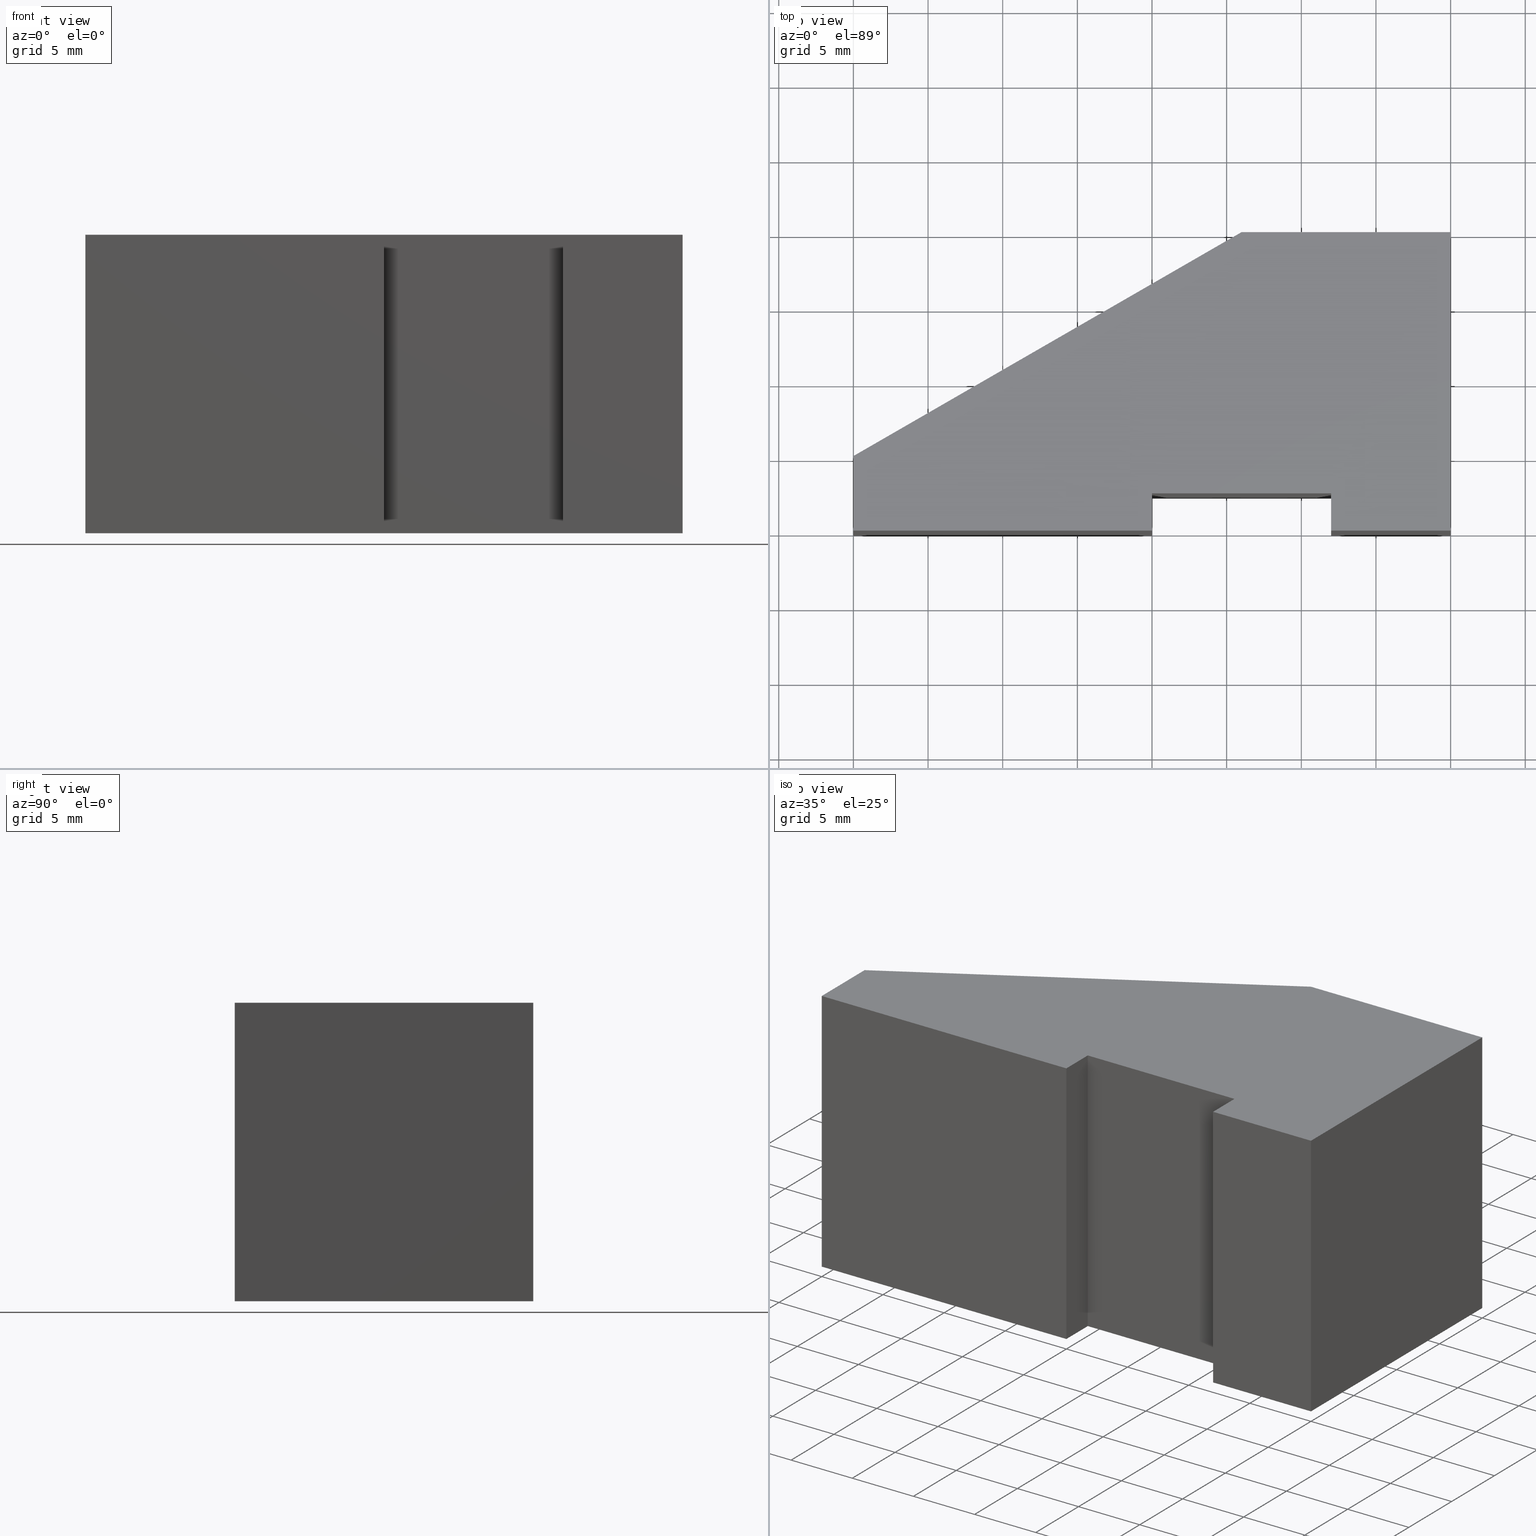
[diagram: canonical four-view strip — front | top / right | iso, engineering-drawing reading convention]
A machine part, canonical four-view strip (front | top / right | iso — engineering-drawing reading convention). The complete STEP part file that produces these views, byte-faithful:
ISO-10303-21;
HEADER;
/* Generated by software containing ST-Developer
 * from STEP Tools, Inc. (www.steptools.com) 
 */

FILE_DESCRIPTION(
/* description */ (''),
/* implementation_level */ '2;1');

FILE_NAME(
/* name */ 'E_3_01_06_06_00_WKZ-0172.stp',
/* time_stamp */ '2025-11-24T12:51:57+01:00',
/* author */ ('d.fischer'),
/* organization */ (''),
/* preprocessor_version */ 'ST-DEVELOPER v20',
/* originating_system */ 'Autodesk Inventor 2025',
/* authorisation */ '');

FILE_SCHEMA (('AUTOMOTIVE_DESIGN { 1 0 10303 214 3 1 1 }'));
ENDSEC;

DATA;
#10=MECHANICAL_DESIGN_GEOMETRIC_PRESENTATION_REPRESENTATION('',(#13),#357);
#11=SHAPE_REPRESENTATION_RELATIONSHIP('SRR','None',#364,#12);
#12=ADVANCED_BREP_SHAPE_REPRESENTATION('',(#14),#356);
#13=STYLED_ITEM('',(#373),#14);
#14=MANIFOLD_SOLID_BREP('Volumenk\X\F6rper1',#212);
#15=FACE_OUTER_BOUND('',#26,.T.);
#16=FACE_OUTER_BOUND('',#27,.T.);
#17=FACE_OUTER_BOUND('',#28,.T.);
#18=FACE_OUTER_BOUND('',#29,.T.);
#19=FACE_OUTER_BOUND('',#30,.T.);
#20=FACE_OUTER_BOUND('',#31,.T.);
#21=FACE_OUTER_BOUND('',#32,.T.);
#22=FACE_OUTER_BOUND('',#33,.T.);
#23=FACE_OUTER_BOUND('',#34,.T.);
#24=FACE_OUTER_BOUND('',#35,.T.);
#25=FACE_OUTER_BOUND('',#36,.T.);
#26=EDGE_LOOP('',(#136,#137,#138,#139,#140,#141,#142,#143,#144));
#27=EDGE_LOOP('',(#145,#146,#147,#148));
#28=EDGE_LOOP('',(#149,#150,#151,#152));
#29=EDGE_LOOP('',(#153,#154,#155,#156));
#30=EDGE_LOOP('',(#157,#158,#159,#160));
#31=EDGE_LOOP('',(#161,#162,#163,#164));
#32=EDGE_LOOP('',(#165,#166,#167,#168));
#33=EDGE_LOOP('',(#169,#170,#171,#172));
#34=EDGE_LOOP('',(#173,#174,#175,#176));
#35=EDGE_LOOP('',(#177,#178,#179,#180));
#36=EDGE_LOOP('',(#181,#182,#183,#184,#185,#186,#187,#188,#189));
#37=LINE('',#301,#64);
#38=LINE('',#303,#65);
#39=LINE('',#305,#66);
#40=LINE('',#307,#67);
#41=LINE('',#309,#68);
#42=LINE('',#311,#69);
#43=LINE('',#313,#70);
#44=LINE('',#315,#71);
#45=LINE('',#316,#72);
#46=LINE('',#320,#73);
#47=LINE('',#321,#74);
#48=LINE('',#322,#75);
#49=LINE('',#325,#76);
#50=LINE('',#326,#77);
#51=LINE('',#329,#78);
#52=LINE('',#330,#79);
#53=LINE('',#333,#80);
#54=LINE('',#334,#81);
#55=LINE('',#337,#82);
#56=LINE('',#338,#83);
#57=LINE('',#341,#84);
#58=LINE('',#342,#85);
#59=LINE('',#345,#86);
#60=LINE('',#346,#87);
#61=LINE('',#349,#88);
#62=LINE('',#350,#89);
#63=LINE('',#352,#90);
#64=VECTOR('',#250,10.);
#65=VECTOR('',#251,10.);
#66=VECTOR('',#252,10.);
#67=VECTOR('',#253,10.);
#68=VECTOR('',#254,10.);
#69=VECTOR('',#255,10.);
#70=VECTOR('',#256,10.);
#71=VECTOR('',#257,10.);
#72=VECTOR('',#258,10.);
#73=VECTOR('',#261,10.);
#74=VECTOR('',#262,10.);
#75=VECTOR('',#263,10.);
#76=VECTOR('',#266,10.);
#77=VECTOR('',#267,10.);
#78=VECTOR('',#270,10.);
#79=VECTOR('',#271,10.);
#80=VECTOR('',#274,10.);
#81=VECTOR('',#275,10.);
#82=VECTOR('',#278,10.);
#83=VECTOR('',#279,10.);
#84=VECTOR('',#282,10.);
#85=VECTOR('',#283,10.);
#86=VECTOR('',#286,10.);
#87=VECTOR('',#287,10.);
#88=VECTOR('',#290,10.);
#89=VECTOR('',#291,10.);
#90=VECTOR('',#294,10.);
#91=VERTEX_POINT('',#299);
#92=VERTEX_POINT('',#300);
#93=VERTEX_POINT('',#302);
#94=VERTEX_POINT('',#304);
#95=VERTEX_POINT('',#306);
#96=VERTEX_POINT('',#308);
#97=VERTEX_POINT('',#310);
#98=VERTEX_POINT('',#312);
#99=VERTEX_POINT('',#314);
#100=VERTEX_POINT('',#318);
#101=VERTEX_POINT('',#319);
#102=VERTEX_POINT('',#324);
#103=VERTEX_POINT('',#328);
#104=VERTEX_POINT('',#332);
#105=VERTEX_POINT('',#336);
#106=VERTEX_POINT('',#340);
#107=VERTEX_POINT('',#344);
#108=VERTEX_POINT('',#348);
#109=EDGE_CURVE('',#91,#92,#37,.T.);
#110=EDGE_CURVE('',#93,#91,#38,.T.);
#111=EDGE_CURVE('',#94,#93,#39,.T.);
#112=EDGE_CURVE('',#95,#94,#40,.T.);
#113=EDGE_CURVE('',#96,#95,#41,.T.);
#114=EDGE_CURVE('',#97,#96,#42,.T.);
#115=EDGE_CURVE('',#98,#97,#43,.T.);
#116=EDGE_CURVE('',#99,#98,#44,.T.);
#117=EDGE_CURVE('',#92,#99,#45,.T.);
#118=EDGE_CURVE('',#100,#101,#46,.T.);
#119=EDGE_CURVE('',#101,#94,#47,.T.);
#120=EDGE_CURVE('',#100,#93,#48,.T.);
#121=EDGE_CURVE('',#101,#102,#49,.T.);
#122=EDGE_CURVE('',#102,#95,#50,.T.);
#123=EDGE_CURVE('',#102,#103,#51,.T.);
#124=EDGE_CURVE('',#103,#96,#52,.T.);
#125=EDGE_CURVE('',#103,#104,#53,.T.);
#126=EDGE_CURVE('',#104,#97,#54,.T.);
#127=EDGE_CURVE('',#104,#105,#55,.T.);
#128=EDGE_CURVE('',#105,#98,#56,.T.);
#129=EDGE_CURVE('',#105,#106,#57,.T.);
#130=EDGE_CURVE('',#106,#99,#58,.T.);
#131=EDGE_CURVE('',#106,#107,#59,.T.);
#132=EDGE_CURVE('',#107,#92,#60,.T.);
#133=EDGE_CURVE('',#107,#108,#61,.T.);
#134=EDGE_CURVE('',#91,#108,#62,.T.);
#135=EDGE_CURVE('',#108,#100,#63,.T.);
#136=ORIENTED_EDGE('',*,*,#109,.F.);
#137=ORIENTED_EDGE('',*,*,#110,.F.);
#138=ORIENTED_EDGE('',*,*,#111,.F.);
#139=ORIENTED_EDGE('',*,*,#112,.F.);
#140=ORIENTED_EDGE('',*,*,#113,.F.);
#141=ORIENTED_EDGE('',*,*,#114,.F.);
#142=ORIENTED_EDGE('',*,*,#115,.F.);
#143=ORIENTED_EDGE('',*,*,#116,.F.);
#144=ORIENTED_EDGE('',*,*,#117,.F.);
#145=ORIENTED_EDGE('',*,*,#118,.T.);
#146=ORIENTED_EDGE('',*,*,#119,.T.);
#147=ORIENTED_EDGE('',*,*,#111,.T.);
#148=ORIENTED_EDGE('',*,*,#120,.F.);
#149=ORIENTED_EDGE('',*,*,#121,.T.);
#150=ORIENTED_EDGE('',*,*,#122,.T.);
#151=ORIENTED_EDGE('',*,*,#112,.T.);
#152=ORIENTED_EDGE('',*,*,#119,.F.);
#153=ORIENTED_EDGE('',*,*,#123,.T.);
#154=ORIENTED_EDGE('',*,*,#124,.T.);
#155=ORIENTED_EDGE('',*,*,#113,.T.);
#156=ORIENTED_EDGE('',*,*,#122,.F.);
#157=ORIENTED_EDGE('',*,*,#125,.T.);
#158=ORIENTED_EDGE('',*,*,#126,.T.);
#159=ORIENTED_EDGE('',*,*,#114,.T.);
#160=ORIENTED_EDGE('',*,*,#124,.F.);
#161=ORIENTED_EDGE('',*,*,#127,.T.);
#162=ORIENTED_EDGE('',*,*,#128,.T.);
#163=ORIENTED_EDGE('',*,*,#115,.T.);
#164=ORIENTED_EDGE('',*,*,#126,.F.);
#165=ORIENTED_EDGE('',*,*,#129,.T.);
#166=ORIENTED_EDGE('',*,*,#130,.T.);
#167=ORIENTED_EDGE('',*,*,#116,.T.);
#168=ORIENTED_EDGE('',*,*,#128,.F.);
#169=ORIENTED_EDGE('',*,*,#131,.T.);
#170=ORIENTED_EDGE('',*,*,#132,.T.);
#171=ORIENTED_EDGE('',*,*,#117,.T.);
#172=ORIENTED_EDGE('',*,*,#130,.F.);
#173=ORIENTED_EDGE('',*,*,#133,.T.);
#174=ORIENTED_EDGE('',*,*,#134,.F.);
#175=ORIENTED_EDGE('',*,*,#109,.T.);
#176=ORIENTED_EDGE('',*,*,#132,.F.);
#177=ORIENTED_EDGE('',*,*,#135,.T.);
#178=ORIENTED_EDGE('',*,*,#120,.T.);
#179=ORIENTED_EDGE('',*,*,#110,.T.);
#180=ORIENTED_EDGE('',*,*,#134,.T.);
#181=ORIENTED_EDGE('',*,*,#118,.F.);
#182=ORIENTED_EDGE('',*,*,#135,.F.);
#183=ORIENTED_EDGE('',*,*,#133,.F.);
#184=ORIENTED_EDGE('',*,*,#131,.F.);
#185=ORIENTED_EDGE('',*,*,#129,.F.);
#186=ORIENTED_EDGE('',*,*,#127,.F.);
#187=ORIENTED_EDGE('',*,*,#125,.F.);
#188=ORIENTED_EDGE('',*,*,#123,.F.);
#189=ORIENTED_EDGE('',*,*,#121,.F.);
#190=PLANE('',#235);
#191=PLANE('',#236);
#192=PLANE('',#237);
#193=PLANE('',#238);
#194=PLANE('',#239);
#195=PLANE('',#240);
#196=PLANE('',#241);
#197=PLANE('',#242);
#198=PLANE('',#243);
#199=PLANE('',#244);
#200=PLANE('',#245);
#201=ADVANCED_FACE('',(#15),#190,.F.);
#202=ADVANCED_FACE('',(#16),#191,.T.);
#203=ADVANCED_FACE('',(#17),#192,.T.);
#204=ADVANCED_FACE('',(#18),#193,.T.);
#205=ADVANCED_FACE('',(#19),#194,.T.);
#206=ADVANCED_FACE('',(#20),#195,.T.);
#207=ADVANCED_FACE('',(#21),#196,.T.);
#208=ADVANCED_FACE('',(#22),#197,.T.);
#209=ADVANCED_FACE('',(#23),#198,.T.);
#210=ADVANCED_FACE('',(#24),#199,.T.);
#211=ADVANCED_FACE('',(#25),#200,.T.);
#212=CLOSED_SHELL('',(#201,#202,#203,#204,#205,#206,#207,#208,#209,#210,
#211));
#213=DERIVED_UNIT_ELEMENT(#216,1.);
#214=DERIVED_UNIT_ELEMENT(#359,-3.);
#215=DIMENSIONAL_EXPONENTS(0.,1.,0.,0.,0.,0.,0.);
#216=(
CONVERSION_BASED_UNIT('gram',#218)
MASS_UNIT()
NAMED_UNIT(#215)
);
#217=(
MASS_UNIT()
NAMED_UNIT(*)
SI_UNIT(.KILO.,.GRAM.)
);
#218=MASS_MEASURE_WITH_UNIT(MASS_MEASURE(0.001),#217);
#219=DERIVED_UNIT((#213,#214));
#220=MEASURE_REPRESENTATION_ITEM('density measure',
POSITIVE_RATIO_MEASURE(8.03),#219);
#221=PROPERTY_DEFINITION_REPRESENTATION(#226,#223);
#222=PROPERTY_DEFINITION_REPRESENTATION(#227,#224);
#223=REPRESENTATION('material name',(#225),#356);
#224=REPRESENTATION('density',(#220),#356);
#225=DESCRIPTIVE_REPRESENTATION_ITEM('1.4301','1.4301');
#226=PROPERTY_DEFINITION('material property','material name',#366);
#227=PROPERTY_DEFINITION('material property','density of part',#366);
#228=DATE_TIME_ROLE('creation_date');
#229=APPLIED_DATE_AND_TIME_ASSIGNMENT(#230,#228,(#366));
#230=DATE_AND_TIME(#231,#232);
#231=CALENDAR_DATE(2011,26,10);
#232=LOCAL_TIME(0,0,0.,#233);
#233=COORDINATED_UNIVERSAL_TIME_OFFSET(0,0,.BEHIND.);
#234=AXIS2_PLACEMENT_3D('',#297,#246,#247);
#235=AXIS2_PLACEMENT_3D('',#298,#248,#249);
#236=AXIS2_PLACEMENT_3D('',#317,#259,#260);
#237=AXIS2_PLACEMENT_3D('',#323,#264,#265);
#238=AXIS2_PLACEMENT_3D('',#327,#268,#269);
#239=AXIS2_PLACEMENT_3D('',#331,#272,#273);
#240=AXIS2_PLACEMENT_3D('',#335,#276,#277);
#241=AXIS2_PLACEMENT_3D('',#339,#280,#281);
#242=AXIS2_PLACEMENT_3D('',#343,#284,#285);
#243=AXIS2_PLACEMENT_3D('',#347,#288,#289);
#244=AXIS2_PLACEMENT_3D('',#351,#292,#293);
#245=AXIS2_PLACEMENT_3D('',#353,#295,#296);
#246=DIRECTION('axis',(0.,0.,1.));
#247=DIRECTION('refdir',(1.,0.,0.));
#248=DIRECTION('center_axis',(0.,0.,1.));
#249=DIRECTION('ref_axis',(1.,0.,0.));
#250=DIRECTION('',(-3.085971153719E-16,1.,0.));
#251=DIRECTION('',(1.,3.46944695195361E-17,0.));
#252=DIRECTION('',(0.,-1.,0.));
#253=DIRECTION('',(1.,3.70074341541719E-16,0.));
#254=DIRECTION('',(0.,1.,0.));
#255=DIRECTION('',(1.,3.67394039744206E-16,0.));
#256=DIRECTION('',(8.88178419700125E-16,-1.,0.));
#257=DIRECTION('',(-0.866185586048601,-0.499722453489577,0.));
#258=DIRECTION('',(-1.,-4.75809867696496E-16,0.));
#259=DIRECTION('center_axis',(-1.,0.,0.));
#260=DIRECTION('ref_axis',(0.,0.,1.));
#261=DIRECTION('',(0.,1.,0.));
#262=DIRECTION('',(0.,0.,-1.));
#263=DIRECTION('',(0.,0.,-1.));
#264=DIRECTION('center_axis',(3.70074341541719E-16,-1.,0.));
#265=DIRECTION('ref_axis',(0.,0.,-1.));
#266=DIRECTION('',(-1.,-3.70074341541719E-16,0.));
#267=DIRECTION('',(0.,0.,-1.));
#268=DIRECTION('center_axis',(1.,0.,0.));
#269=DIRECTION('ref_axis',(0.,0.,-1.));
#270=DIRECTION('',(0.,-1.,0.));
#271=DIRECTION('',(0.,0.,-1.));
#272=DIRECTION('center_axis',(3.67394039744206E-16,-1.,0.));
#273=DIRECTION('ref_axis',(0.,0.,-1.));
#274=DIRECTION('',(-1.,-3.67394039744206E-16,0.));
#275=DIRECTION('',(0.,0.,-1.));
#276=DIRECTION('center_axis',(-1.,-8.88178419700125E-16,0.));
#277=DIRECTION('ref_axis',(0.,0.,1.));
#278=DIRECTION('',(-8.88178419700125E-16,1.,0.));
#279=DIRECTION('',(0.,0.,-1.));
#280=DIRECTION('center_axis',(-0.499722453489577,0.866185586048601,0.));
#281=DIRECTION('ref_axis',(0.,0.,1.));
#282=DIRECTION('',(0.866185586048601,0.499722453489577,0.));
#283=DIRECTION('',(0.,0.,-1.));
#284=DIRECTION('center_axis',(-4.75809867696496E-16,1.,0.));
#285=DIRECTION('ref_axis',(0.,0.,1.));
#286=DIRECTION('',(1.,4.75809867696496E-16,0.));
#287=DIRECTION('',(0.,0.,-1.));
#288=DIRECTION('center_axis',(1.,3.085971153719E-16,0.));
#289=DIRECTION('ref_axis',(0.,0.,-1.));
#290=DIRECTION('',(3.085971153719E-16,-1.,0.));
#291=DIRECTION('',(0.,0.,1.));
#292=DIRECTION('center_axis',(3.46944695195361E-17,-1.,0.));
#293=DIRECTION('ref_axis',(0.,0.,-1.));
#294=DIRECTION('',(-1.,-3.46944695195361E-17,0.));
#295=DIRECTION('center_axis',(0.,0.,1.));
#296=DIRECTION('ref_axis',(1.,0.,0.));
#297=CARTESIAN_POINT('',(0.,0.,0.));
#298=CARTESIAN_POINT('Origin',(-17.3522872857137,7.92829977061662,-10.));
#299=CARTESIAN_POINT('',(3.67394050203139E-15,0.,-10.));
#300=CARTESIAN_POINT('',(-2.4980018054066E-15,20.,-10.));
#301=CARTESIAN_POINT('',(-2.4980018054066E-15,20.,-10.));
#302=CARTESIAN_POINT('',(-8.,-2.77555756156289E-16,-10.));
#303=CARTESIAN_POINT('',(3.67394050203139E-15,0.,-10.));
#304=CARTESIAN_POINT('',(-8.,2.5,-10.));
#305=CARTESIAN_POINT('',(-8.,-2.77555756156289E-16,-10.));
#306=CARTESIAN_POINT('',(-20.,2.5,-10.));
#307=CARTESIAN_POINT('',(-8.,2.5,-10.));
#308=CARTESIAN_POINT('',(-20.,5.74670060565057E-15,-10.));
#309=CARTESIAN_POINT('',(-20.,2.5,-10.));
#310=CARTESIAN_POINT('',(-40.,-1.60118018923355E-15,-10.));
#311=CARTESIAN_POINT('',(-20.,5.74670060565057E-15,-10.));
#312=CARTESIAN_POINT('',(-40.,5.,-10.));
#313=CARTESIAN_POINT('',(-40.,-1.60118018923355E-15,-10.));
#314=CARTESIAN_POINT('',(-14.,20.,-10.));
#315=CARTESIAN_POINT('',(-40.,5.,-10.));
#316=CARTESIAN_POINT('',(-14.,20.,-10.));
#317=CARTESIAN_POINT('Origin',(-8.,-2.77555756156289E-16,0.));
#318=CARTESIAN_POINT('',(-8.,-2.77555756156289E-16,10.));
#319=CARTESIAN_POINT('',(-8.,2.5,10.));
#320=CARTESIAN_POINT('',(-8.,-2.77555756156289E-16,10.));
#321=CARTESIAN_POINT('',(-8.,2.5,0.));
#322=CARTESIAN_POINT('',(-8.,-2.77555756156289E-16,0.));
#323=CARTESIAN_POINT('Origin',(-8.,2.5,0.));
#324=CARTESIAN_POINT('',(-20.,2.5,10.));
#325=CARTESIAN_POINT('',(-8.,2.5,10.));
#326=CARTESIAN_POINT('',(-20.,2.5,0.));
#327=CARTESIAN_POINT('Origin',(-20.,2.5,0.));
#328=CARTESIAN_POINT('',(-20.,5.74670060565057E-15,10.));
#329=CARTESIAN_POINT('',(-20.,2.5,10.));
#330=CARTESIAN_POINT('',(-20.,5.74670060565057E-15,0.));
#331=CARTESIAN_POINT('Origin',(-20.,5.74670060565057E-15,0.));
#332=CARTESIAN_POINT('',(-40.,-1.60118018923355E-15,10.));
#333=CARTESIAN_POINT('',(-20.,5.74670060565057E-15,10.));
#334=CARTESIAN_POINT('',(-40.,-1.60118018923355E-15,0.));
#335=CARTESIAN_POINT('Origin',(-40.,-1.60118018923355E-15,0.));
#336=CARTESIAN_POINT('',(-40.,5.,10.));
#337=CARTESIAN_POINT('',(-40.,-1.60118018923355E-15,10.));
#338=CARTESIAN_POINT('',(-40.,5.,0.));
#339=CARTESIAN_POINT('Origin',(-40.,5.,0.));
#340=CARTESIAN_POINT('',(-14.,20.,10.));
#341=CARTESIAN_POINT('',(-40.,5.,10.));
#342=CARTESIAN_POINT('',(-14.,20.,0.));
#343=CARTESIAN_POINT('Origin',(-14.,20.,0.));
#344=CARTESIAN_POINT('',(-2.4980018054066E-15,20.,10.));
#345=CARTESIAN_POINT('',(-14.,20.,10.));
#346=CARTESIAN_POINT('',(-2.4980018054066E-15,20.,0.));
#347=CARTESIAN_POINT('Origin',(-2.4980018054066E-15,20.,0.));
#348=CARTESIAN_POINT('',(3.67394050203139E-15,0.,10.));
#349=CARTESIAN_POINT('',(-2.4980018054066E-15,20.,10.));
#350=CARTESIAN_POINT('',(3.67394050203139E-15,0.,0.));
#351=CARTESIAN_POINT('Origin',(3.67394050203139E-15,0.,0.));
#352=CARTESIAN_POINT('',(3.67394050203139E-15,0.,10.));
#353=CARTESIAN_POINT('Origin',(-17.3522872857137,7.92829977061662,10.));
#354=UNCERTAINTY_MEASURE_WITH_UNIT(LENGTH_MEASURE(0.01),#358,
'DISTANCE_ACCURACY_VALUE',
'Maximum model space distance between geometric entities at asserted c
onnectivities');
#355=UNCERTAINTY_MEASURE_WITH_UNIT(LENGTH_MEASURE(0.01),#358,
'DISTANCE_ACCURACY_VALUE',
'Maximum model space distance between geometric entities at asserted c
onnectivities');
#356=(
GEOMETRIC_REPRESENTATION_CONTEXT(3)
GLOBAL_UNCERTAINTY_ASSIGNED_CONTEXT((#354))
GLOBAL_UNIT_ASSIGNED_CONTEXT((#358,#360,#361))
REPRESENTATION_CONTEXT('','3D')
);
#357=(
GEOMETRIC_REPRESENTATION_CONTEXT(3)
GLOBAL_UNCERTAINTY_ASSIGNED_CONTEXT((#355))
GLOBAL_UNIT_ASSIGNED_CONTEXT((#358,#360,#361))
REPRESENTATION_CONTEXT('','3D')
);
#358=(
LENGTH_UNIT()
NAMED_UNIT(*)
SI_UNIT(.MILLI.,.METRE.)
);
#359=(
LENGTH_UNIT()
NAMED_UNIT(*)
SI_UNIT(.CENTI.,.METRE.)
);
#360=(
NAMED_UNIT(*)
PLANE_ANGLE_UNIT()
SI_UNIT($,.RADIAN.)
);
#361=(
NAMED_UNIT(*)
SI_UNIT($,.STERADIAN.)
SOLID_ANGLE_UNIT()
);
#362=SHAPE_DEFINITION_REPRESENTATION(#363,#364);
#363=PRODUCT_DEFINITION_SHAPE('',$,#366);
#364=SHAPE_REPRESENTATION('',(#234),#356);
#365=PRODUCT_DEFINITION_CONTEXT('part definition',#370,'design');
#366=PRODUCT_DEFINITION('WKZ-0172','E_3_01_06_06_00_WKZ-0172',#367,#365);
#367=PRODUCT_DEFINITION_FORMATION('',$,#372);
#368=PRODUCT_RELATED_PRODUCT_CATEGORY('E_3_01_06_06_00_WKZ-0172',
'E_3_01_06_06_00_WKZ-0172',(#372));
#369=APPLICATION_PROTOCOL_DEFINITION('international standard',
'automotive_design',2009,#370);
#370=APPLICATION_CONTEXT(
'Core Data for Automotive Mechanical Design Process');
#371=PRODUCT_CONTEXT('part definition',#370,'mechanical');
#372=PRODUCT('WKZ-0172','E_3_01_06_06_00_WKZ-0172',$,(#371));
#373=PRESENTATION_STYLE_ASSIGNMENT((#374));
#374=SURFACE_STYLE_USAGE(.BOTH.,#377);
#375=SURFACE_STYLE_RENDERING_WITH_PROPERTIES($,#381,(#376));
#376=SURFACE_STYLE_TRANSPARENT(0.);
#377=SURFACE_SIDE_STYLE('',(#378,#375));
#378=SURFACE_STYLE_FILL_AREA(#379);
#379=FILL_AREA_STYLE('',(#380));
#380=FILL_AREA_STYLE_COLOUR('',#381);
#381=COLOUR_RGB('',0.92156862745098,0.92156862745098,0.92156862745098);
ENDSEC;
END-ISO-10303-21;
